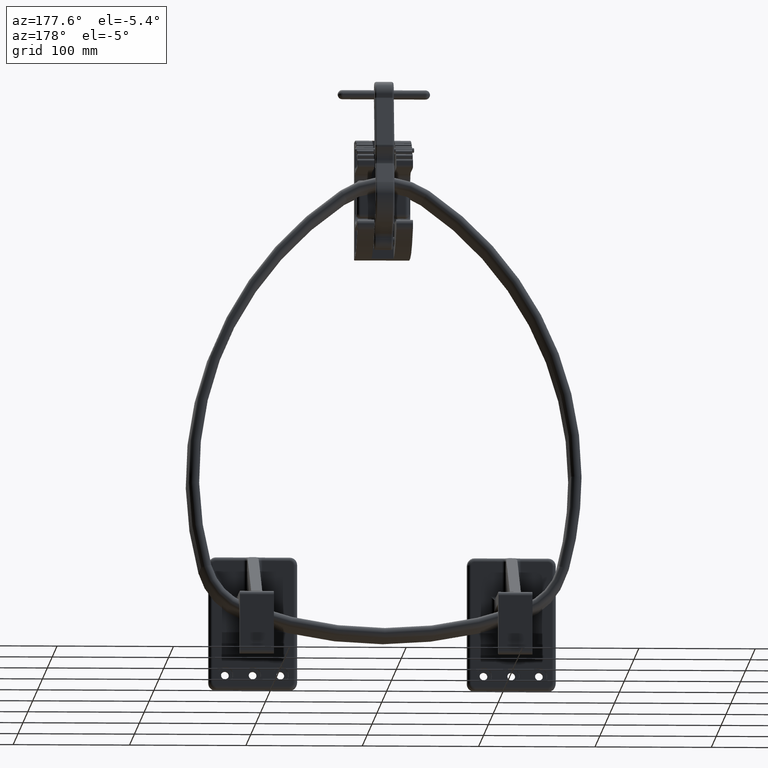
[diagram: clean part render]
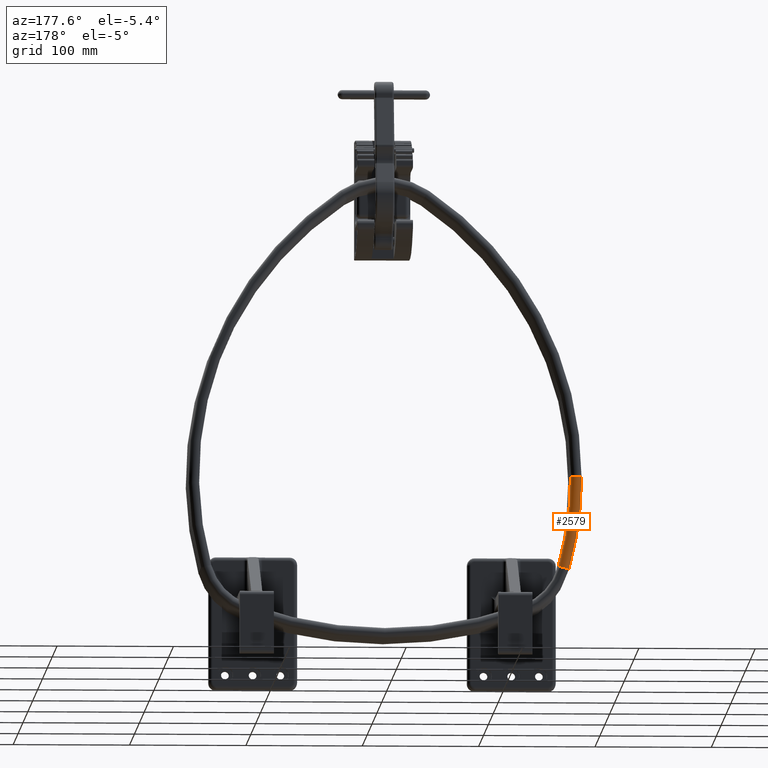
[diagram: same view with one face highlighted and labeled with its STEP entity id]
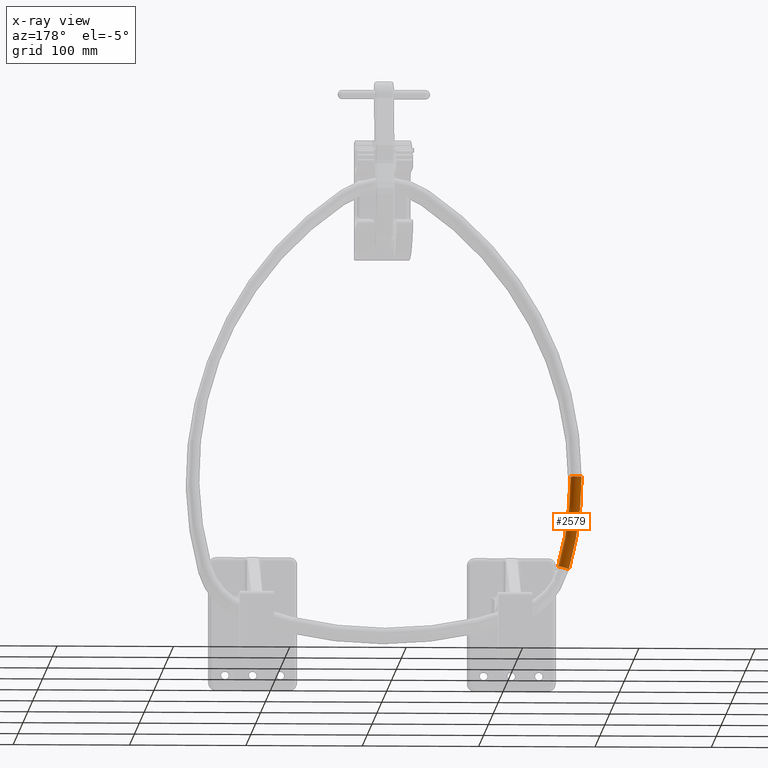
[diagram: x-ray of the same camera — body ghosted, the highlighted face saturated]
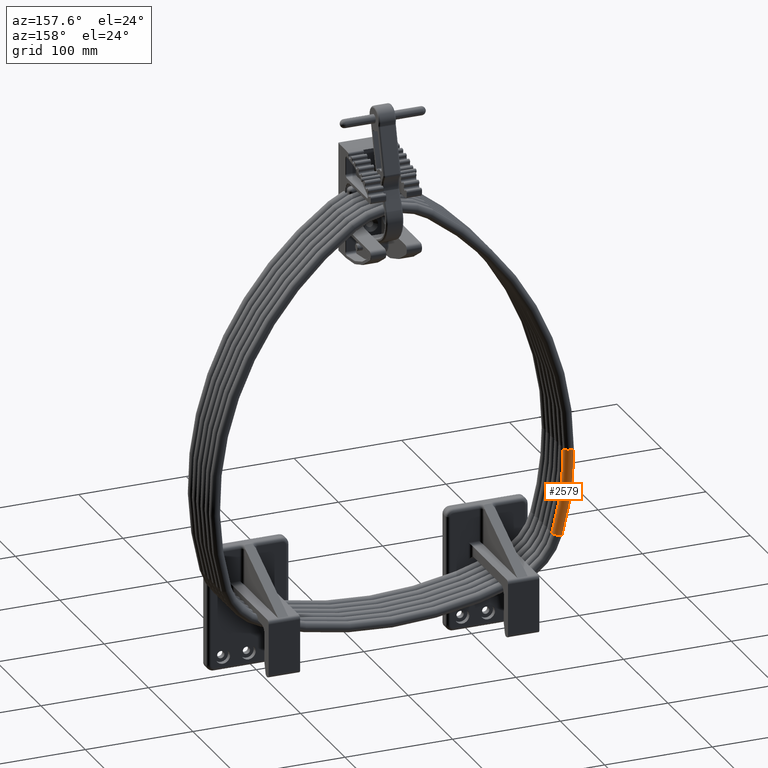
[diagram: same view with one face highlighted and labeled with its STEP entity id]
A machine part, auxiliary view. The second image highlights one B-rep face of the part: STEP entity #2579.
The next image is the same camera in x-ray: the body ghosted, the highlighted face saturated — about 0% of this face is hidden behind the body in this view.
A second angle (auxiliary view) of the same face is appended — the face is thin or edge-on in the first view.
In plain terms, the highlighted toroidal blend (fillet) surface has major radius 292.1 mm and minor (blend) radius 4.7625 mm.
Its self-contained STEP definition (entity closure, byte-faithful):
#1997 = CARTESIAN_POINT ( 'NONE',  ( -6.470741725853117500, -0.5363171817178108400, 0.0000000000000000000 ) ) ;
#2000 = CARTESIAN_POINT ( 'NONE',  ( -6.046631875473318400, 2.557977147131155400, 0.0000000000000000000 ) ) ;
#2004 = DIRECTION ( 'NONE',  ( 0.0000000000000000000, -1.000000000000000000, 0.0000000000000000000 ) ) ;
#2005 = DIRECTION ( 'NONE',  ( 0.0000000000000000000, 0.0000000000000000000, -1.000000000000000000 ) ) ;
#2007 = DIRECTION ( 'NONE',  ( 0.2690690720738069300, 0.9631208825756717400, 0.0000000000000000000 ) ) ;
#2008 = DIRECTION ( 'NONE',  ( 0.0000000000000000000, 0.0000000000000000000, -1.000000000000000000 ) ) ;
#2579 = ADVANCED_FACE ( 'NONE', ( #5791 ), #5788, .T. ) ;
#2725 = CARTESIAN_POINT ( 'NONE',  ( 5.029258274147628600, -0.5363171817178108400, 0.0000000000000000000 ) ) ;
#2733 = DIRECTION ( 'NONE',  ( -0.0000000000000000000, -0.0000000000000000000, -1.000000000000000000 ) ) ;
#2737 = DIRECTION ( 'NONE',  ( -1.000000000000000000, 0.0000000000000000000, 0.0000000000000000000 ) ) ;
#4954 = EDGE_CURVE ( 'NONE', #31866, #31897, #22310, .T. ) ;
#5362 = AXIS2_PLACEMENT_3D ( 'NONE', #21715, #21747, #21749 ) ;
#5788 = TOROIDAL_SURFACE ( 'NONE', #8897, 11.50000000000074600, 0.1874999999999999200 ) ;
#5791 = FACE_OUTER_BOUND ( 'NONE', #18277, .T. ) ;
#8897 = AXIS2_PLACEMENT_3D ( 'NONE', #2725, #2733, #2737 ) ;
#9897 = EDGE_CURVE ( 'NONE', #31866, #31896, #30485, .T. ) ;
#9898 = EDGE_CURVE ( 'NONE', #31763, #31897, #30486, .T. ) ;
#13731 = CIRCLE ( 'NONE', #25367, 11.68750000000074600 ) ;
#15519 = CARTESIAN_POINT ( 'NONE',  ( -6.227217040956256600, 2.608427598144994700, 0.0000000000000000000 ) ) ;
#15591 = CARTESIAN_POINT ( 'NONE',  ( -6.283241725853117500, -0.5363171817178108400, 2.296212748401283400E-017 ) ) ;
#15598 = CARTESIAN_POINT ( 'NONE',  ( -6.658241725853117500, -0.5363171817178108400, 0.0000000000000000000 ) ) ;
#15599 = CARTESIAN_POINT ( 'NONE',  ( -5.866046709990380100, 2.507526696117317000, 2.296212748401285900E-017 ) ) ;
#17365 = CARTESIAN_POINT ( 'NONE',  ( 5.029258274147628600, -0.5363171817178108400, 0.0000000000000000000 ) ) ;
#17366 = DIRECTION ( 'NONE',  ( -0.0000000000000000000, -0.0000000000000000000, -1.000000000000000000 ) ) ;
#17367 = DIRECTION ( 'NONE',  ( -1.000000000000000000, 0.0000000000000000000, 0.0000000000000000000 ) ) ;
#18277 = EDGE_LOOP ( 'NONE', ( #28499, #28500, #28501, #28502 ) ) ;
#21715 = CARTESIAN_POINT ( 'NONE',  ( 5.029258274147628600, -0.5363171817178108400, 2.296212748401286200E-017 ) ) ;
#21747 = DIRECTION ( 'NONE',  ( -0.0000000000000000000, -0.0000000000000000000, -1.000000000000000000 ) ) ;
#21749 = DIRECTION ( 'NONE',  ( -1.000000000000000000, 0.0000000000000000000, 0.0000000000000000000 ) ) ;
#22310 = CIRCLE ( 'NONE', #5362, 11.31250000000074600 ) ;
#25367 = AXIS2_PLACEMENT_3D ( 'NONE', #17365, #17366, #17367 ) ;
#28499 = ORIENTED_EDGE ( 'NONE', *, *, #32622, .F. ) ;
#28500 = ORIENTED_EDGE ( 'NONE', *, *, #9897, .F. ) ;
#28501 = ORIENTED_EDGE ( 'NONE', *, *, #4954, .T. ) ;
#28502 = ORIENTED_EDGE ( 'NONE', *, *, #9898, .F. ) ;
#28879 = AXIS2_PLACEMENT_3D ( 'NONE', #1997, #2004, #2005 ) ;
#28880 = AXIS2_PLACEMENT_3D ( 'NONE', #2000, #2007, #2008 ) ;
#30485 = CIRCLE ( 'NONE', #28879, 0.1874999999999999200 ) ;
#30486 = CIRCLE ( 'NONE', #28880, 0.1874999999999999200 ) ;
#31763 = VERTEX_POINT ( 'NONE', #15519 ) ;
#31866 = VERTEX_POINT ( 'NONE', #15591 ) ;
#31896 = VERTEX_POINT ( 'NONE', #15598 ) ;
#31897 = VERTEX_POINT ( 'NONE', #15599 ) ;
#32622 = EDGE_CURVE ( 'NONE', #31896, #31763, #13731, .T. ) ;